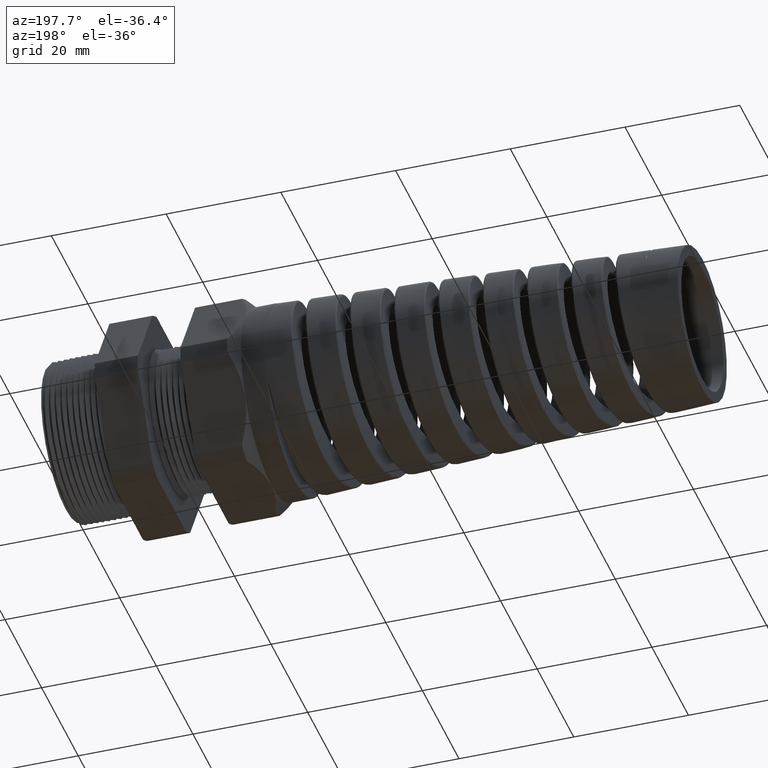
[diagram: clean part render]
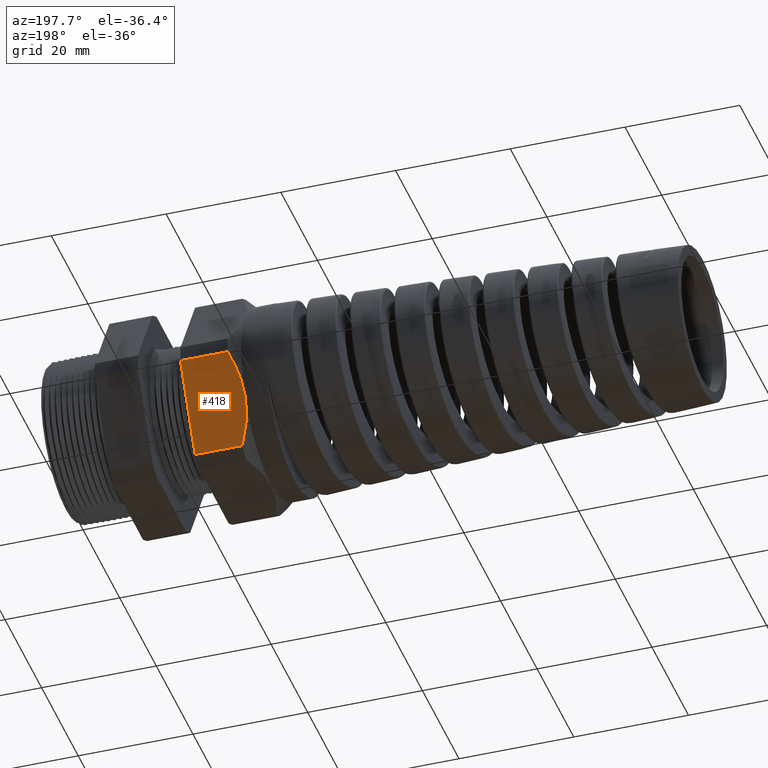
[diagram: same view with one face highlighted and labeled with its STEP entity id]
A machine part, auxiliary view. The second image highlights one B-rep face of the part: STEP entity #418.
In plain terms, the highlighted planar face has unit normal (0, 0.866, -0.5).
Its self-contained STEP definition (entity closure, byte-faithful):
#382 = ORIENTED_EDGE ( 'NONE', *, *, #383, .T. ) ;
#383 = EDGE_CURVE ( 'NONE', #410, #2711, #3200, .T. ) ;
#385 = ORIENTED_EDGE ( 'NONE', *, *, #387, .T. ) ;
#387 = EDGE_CURVE ( 'NONE', #2711, #2511, #3199, .T. ) ;
#388 = ORIENTED_EDGE ( 'NONE', *, *, #2510, .F. ) ;
#389 = ORIENTED_EDGE ( 'NONE', *, *, #390, .F. ) ;
#390 = EDGE_CURVE ( 'NONE', #415, #2501, #3198, .T. ) ;
#410 = VERTEX_POINT ( 'NONE', #3219 ) ;
#413 = EDGE_CURVE ( 'NONE', #415, #410, #3218, .T. ) ;
#415 = VERTEX_POINT ( 'NONE', #3214 ) ;
#418 = ADVANCED_FACE ( 'NONE', ( #3208 ), #3206, .T. ) ;
#419 = EDGE_LOOP ( 'NONE', ( #420, #382, #385, #388, #389 ) ) ;
#420 = ORIENTED_EDGE ( 'NONE', *, *, #413, .T. ) ;
#2501 = VERTEX_POINT ( 'NONE', #13704 ) ;
#2510 = EDGE_CURVE ( 'NONE', #2501, #2511, #13698, .T. ) ;
#2511 = VERTEX_POINT ( 'NONE', #13748 ) ;
#2711 = VERTEX_POINT ( 'NONE', #14697 ) ;
#3179 = DIRECTION ( 'NONE',  ( 0.0000000000000000000, 0.4999999999999996100, 0.8660254037844388200 ) ) ;
#3180 = VECTOR ( 'NONE', #3179, 39.37007874015748100 ) ;
#3181 = CARTESIAN_POINT ( 'NONE',  ( -1.220389763779527600, 0.7194909755756818700, -0.05380507471562087600 ) ) ;
#3182 = CARTESIAN_POINT ( 'NONE',  ( -1.242038095775945200, 0.6945519286445999100, -0.09700077109259963600 ) ) ;
#3183 = CARTESIAN_POINT ( 'NONE',  ( -1.260161853850736600, 0.6687756690813084800, -0.1416465622853038700 ) ) ;
#3184 = CARTESIAN_POINT ( 'NONE',  ( -1.285050007405225600, 0.6165592345672921100, -0.2320880798536731300 ) ) ;
#3185 = CARTESIAN_POINT ( 'NONE',  ( -1.291889763779527200, 0.5900081318517966800, -0.2780759387538906900 ) ) ;
#3186 = CARTESIAN_POINT ( 'NONE',  ( -1.291889763779527500, 0.5629165124598852800, -0.3249999999999997300 ) ) ;
#3187 = CARTESIAN_POINT ( 'NONE',  ( -0.8981889763779525900, 0.6877915124598852300, -0.1087101554048363800 ) ) ;
#3188 = CARTESIAN_POINT ( 'NONE',  ( -1.291889763779527500, 0.5629165124598852800, -0.3249999999999997300 ) ) ;
#3189 = CARTESIAN_POINT ( 'NONE',  ( -1.291889763779527200, 0.5561389602113053800, -0.3367390648454929900 ) ) ;
#3190 = CARTESIAN_POINT ( 'NONE',  ( -1.291460853679630400, 0.5492994181763347600, -0.3485854991505652500 ) ) ;
#3191 = CARTESIAN_POINT ( 'NONE',  ( -1.289757307482530800, 0.5357104722797965100, -0.3721222438646742400 ) ) ;
#3192 = CARTESIAN_POINT ( 'NONE',  ( -1.288488242340940700, 0.5289679975772971800, -0.3838005526181505500 ) ) ;
#3193 = CARTESIAN_POINT ( 'NONE',  ( -1.283504729739888100, 0.5088871528993772500, -0.4185815958592071200 ) ) ;
#3194 = CARTESIAN_POINT ( 'NONE',  ( -1.278613598462209300, 0.4956954080403318000, -0.4414303681955596400 ) ) ;
#3195 = CARTESIAN_POINT ( 'NONE',  ( -1.259883036713412400, 0.4566257321431004800, -0.5091010318848135900 ) ) ;
#3196 = CARTESIAN_POINT ( 'NONE',  ( -1.242011327000795300, 0.4312502584378787900, -0.5530526416083854100 ) ) ;
#3197 = CARTESIAN_POINT ( 'NONE',  ( -1.220389763779527600, 0.4063420493440889600, -0.5961949252843786700 ) ) ;
#3198 = LINE ( 'NONE', #3187, #3180 ) ;
#3199 = B_SPLINE_CURVE_WITH_KNOTS ( 'NONE', 3,
 ( #3186, #3185, #3184, #3183, #3182, #3181 ),
 .UNSPECIFIED., .F., .F.,
 ( 4, 2, 4 ),
 ( 0.008163776578903766300, 0.01224274182034617400, 0.01632170706178858200 ),
 .UNSPECIFIED. ) ;
#3200 = B_SPLINE_CURVE_WITH_KNOTS ( 'NONE', 3,
 ( #3197, #3196, #3195, #3194, #3193, #3192, #3191, #3190, #3189, #3188 ),
 .UNSPECIFIED., .F., .F.,
 ( 4, 2, 2, 2, 4 ),
 ( 2.483249165352349700E-007, 0.004082012451910149400, 0.006122894515406957000, 0.007143335547155360700, 0.008163776578903766300 ),
 .UNSPECIFIED. ) ;
#3202 = DIRECTION ( 'NONE',  ( 0.0000000000000000000, 0.4999999999999996100, 0.8660254037844388200 ) ) ;
#3203 = DIRECTION ( 'NONE',  ( 0.0000000000000000000, 0.8660254037844388200, -0.4999999999999996100 ) ) ;
#3204 = CARTESIAN_POINT ( 'NONE',  ( 0.1200000000000000900, 0.7194909755756818700, -0.05380507471562087600 ) ) ;
#3205 = AXIS2_PLACEMENT_3D ( 'NONE', #3204, #3203, #3202 ) ;
#3206 = PLANE ( 'NONE',  #3205 ) ;
#3208 = FACE_OUTER_BOUND ( 'NONE', #419, .T. ) ;
#3214 = CARTESIAN_POINT ( 'NONE',  ( -0.8981889763779525900, 0.4063420493440889600, -0.5961949252843786700 ) ) ;
#3215 = DIRECTION ( 'NONE',  ( -1.000000000000000000, 0.0000000000000000000, 0.0000000000000000000 ) ) ;
#3216 = VECTOR ( 'NONE', #3215, 39.37007874015748100 ) ;
#3217 = CARTESIAN_POINT ( 'NONE',  ( 0.1200000000000000900, 0.4063420493440889600, -0.5961949252843786700 ) ) ;
#3218 = LINE ( 'NONE', #3217, #3216 ) ;
#3219 = CARTESIAN_POINT ( 'NONE',  ( -1.220389763779527600, 0.4063420493440889600, -0.5961949252843786700 ) ) ;
#13696 = VECTOR ( 'NONE', #13749, 39.37007874015748100 ) ;
#13697 = CARTESIAN_POINT ( 'NONE',  ( 0.1200000000000000900, 0.7194909755756818700, -0.05380507471562087600 ) ) ;
#13698 = LINE ( 'NONE', #13697, #13696 ) ;
#13704 = CARTESIAN_POINT ( 'NONE',  ( -0.8981889763779525900, 0.7194909755756818700, -0.05380507471562087600 ) ) ;
#13748 = CARTESIAN_POINT ( 'NONE',  ( -1.220389763779527600, 0.7194909755756818700, -0.05380507471562087600 ) ) ;
#13749 = DIRECTION ( 'NONE',  ( -1.000000000000000000, 0.0000000000000000000, 0.0000000000000000000 ) ) ;
#14697 = CARTESIAN_POINT ( 'NONE',  ( -1.291889763779527500, 0.5629165124598852800, -0.3249999999999997300 ) ) ;